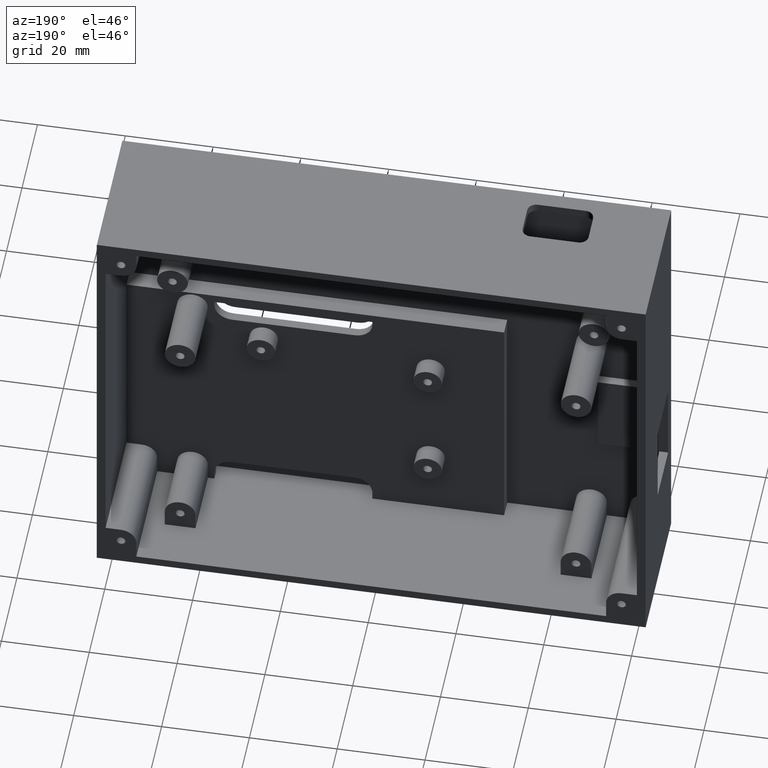
[diagram: clean part render]
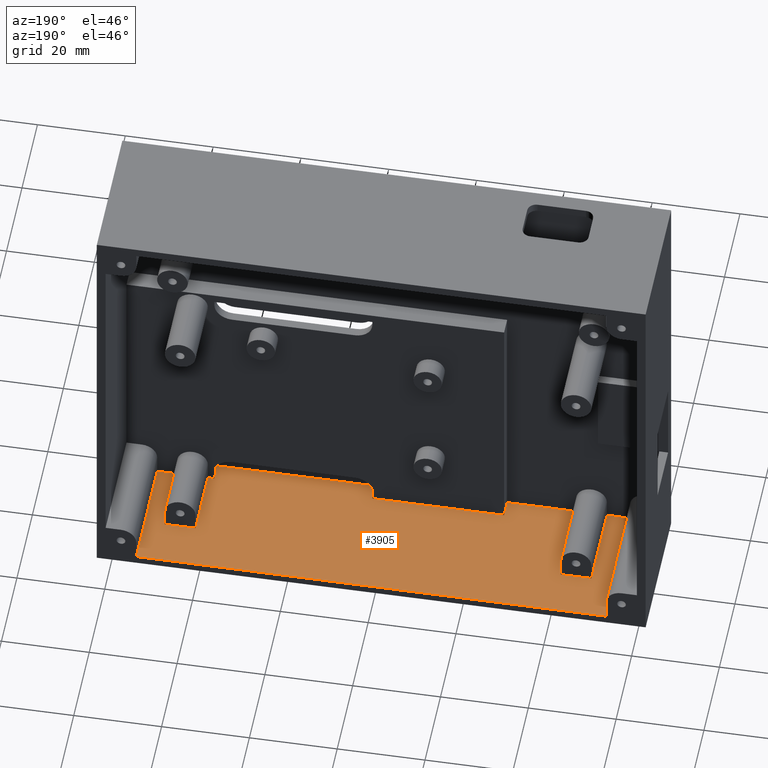
[diagram: same view with one face highlighted and labeled with its STEP entity id]
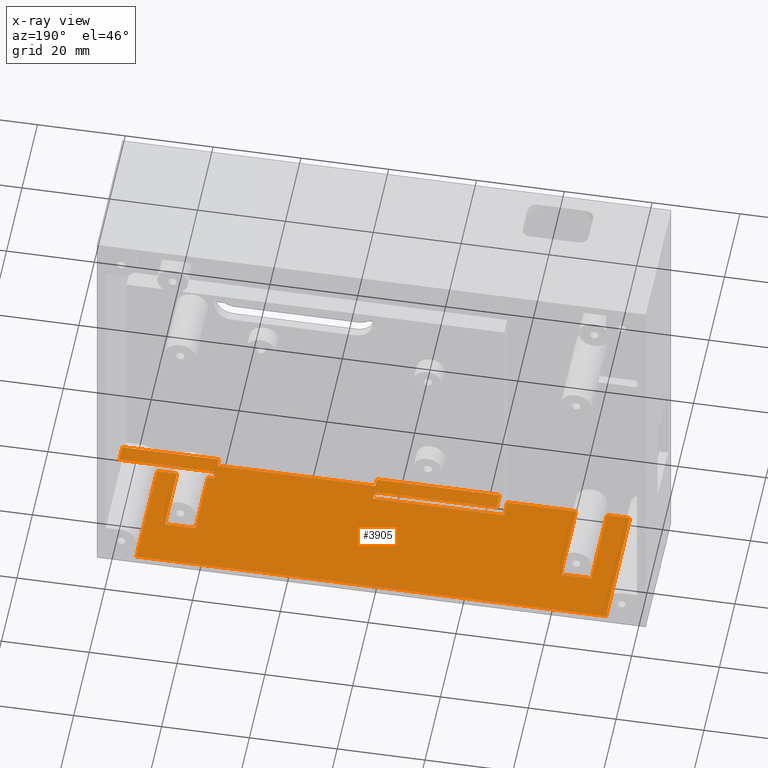
[diagram: x-ray of the same camera — body ghosted, the highlighted face saturated]
A machine part, auxiliary view. The second image highlights one B-rep face of the part: STEP entity #3905.
The next image is the same camera in x-ray: the body ghosted, the highlighted face saturated — about 0% of this face is hidden behind the body in this view.
In plain terms, the highlighted planar face has unit normal (0, 0, -1).
Its self-contained STEP definition (entity closure, byte-faithful):
#29 = VECTOR ( 'NONE', #1264, 1000.000000000000000 ) ;
#44 = ORIENTED_EDGE ( 'NONE', *, *, #835, .T. ) ;
#155 = LINE ( 'NONE', #4435, #3276 ) ;
#159 = CARTESIAN_POINT ( 'NONE',  ( -67.68032640949553500, 22.00000000000000000, -42.25222551928782600 ) ) ;
#165 = PLANE ( 'NONE',  #1858 ) ;
#194 = DIRECTION ( 'NONE',  ( -0.0000000000000000000, -1.000000000000000000, -0.0000000000000000000 ) ) ;
#200 = VERTEX_POINT ( 'NONE', #3764 ) ;
#287 = ORIENTED_EDGE ( 'NONE', *, *, #3106, .T. ) ;
#292 = EDGE_CURVE ( 'NONE', #633, #1547, #3825, .T. ) ;
#298 = VERTEX_POINT ( 'NONE', #1825 ) ;
#304 = ORIENTED_EDGE ( 'NONE', *, *, #1840, .T. ) ;
#352 = ORIENTED_EDGE ( 'NONE', *, *, #2330, .T. ) ;
#377 = DIRECTION ( 'NONE',  ( -1.000000000000000000, -0.0000000000000000000, -0.0000000000000000000 ) ) ;
#481 = VECTOR ( 'NONE', #377, 1000.000000000000000 ) ;
#486 = LINE ( 'NONE', #4099, #3293 ) ;
#487 = CARTESIAN_POINT ( 'NONE',  ( 34.02967359050448700, 6.000000000000000000, -42.25222551928782600 ) ) ;
#503 = ORIENTED_EDGE ( 'NONE', *, *, #3562, .T. ) ;
#510 = EDGE_CURVE ( 'NONE', #1196, #2266, #1148, .T. ) ;
#513 = VECTOR ( 'NONE', #1716, 1000.000000000000000 ) ;
#529 = DIRECTION ( 'NONE',  ( -1.000000000000000000, -0.0000000000000000000, -0.0000000000000000000 ) ) ;
#536 = CARTESIAN_POINT ( 'NONE',  ( -42.97032640949553400, 4.000000000000000000, -42.25222551928782600 ) ) ;
#560 = CARTESIAN_POINT ( 'NONE',  ( -72.97032640949552700, 33.00000000000000000, -42.25222551928782600 ) ) ;
#569 = CARTESIAN_POINT ( 'NONE',  ( 43.02967359050447300, 4.000000000000000000, -42.25222551928782600 ) ) ;
#570 = CARTESIAN_POINT ( 'NONE',  ( 21.02967359050446900, 0.0000000000000000000, -42.25222551928782600 ) ) ;
#581 = CARTESIAN_POINT ( 'NONE',  ( -14.97032640949552700, 2.000000000000000000, -42.25222551928782600 ) ) ;
#589 = EDGE_CURVE ( 'NONE', #4100, #3060, #2281, .T. ) ;
#608 = VECTOR ( 'NONE', #2617, 1000.000000000000000 ) ;
#617 = EDGE_CURVE ( 'NONE', #1860, #3164, #875, .T. ) ;
#633 = VERTEX_POINT ( 'NONE', #560 ) ;
#648 = VERTEX_POINT ( 'NONE', #2255 ) ;
#662 = DIRECTION ( 'NONE',  ( 0.0000000000000000000, 1.000000000000000000, 0.0000000000000000000 ) ) ;
#671 = CARTESIAN_POINT ( 'NONE',  ( -42.97032640949553400, 0.0000000000000000000, -42.25222551928782600 ) ) ;
#700 = DIRECTION ( 'NONE',  ( 1.000000000000000000, 0.0000000000000000000, 0.0000000000000000000 ) ) ;
#701 = VECTOR ( 'NONE', #2405, 1000.000000000000000 ) ;
#715 = EDGE_CURVE ( 'NONE', #1860, #2837, #2716, .T. ) ;
#719 = DIRECTION ( 'NONE',  ( 0.0000000000000000000, -1.000000000000000000, 0.0000000000000000000 ) ) ;
#731 = ORIENTED_EDGE ( 'NONE', *, *, #4073, .T. ) ;
#823 = CARTESIAN_POINT ( 'NONE',  ( -79.97032640949552700, 193.7046981267193600, -42.25222551928782600 ) ) ;
#835 = EDGE_CURVE ( 'NONE', #2403, #298, #4089, .T. ) ;
#841 = EDGE_CURVE ( 'NONE', #3807, #4049, #3084, .T. ) ;
#843 = ORIENTED_EDGE ( 'NONE', *, *, #3315, .F. ) ;
#844 = VECTOR ( 'NONE', #4191, 1000.000000000000000 ) ;
#853 = EDGE_CURVE ( 'NONE', #2837, #2754, #2054, .T. ) ;
#864 = VECTOR ( 'NONE', #1893, 1000.000000000000000 ) ;
#873 = DIRECTION ( 'NONE',  ( 1.000000000000000000, -0.0000000000000000000, 0.0000000000000000000 ) ) ;
#875 = LINE ( 'NONE', #2967, #1369 ) ;
#926 = CARTESIAN_POINT ( 'NONE',  ( -67.68032640949553500, 22.00000000000000000, -42.25222551928782600 ) ) ;
#938 = CARTESIAN_POINT ( 'NONE',  ( 41.02967359050448000, 4.000000000000000000, -42.25222551928782600 ) ) ;
#943 = CARTESIAN_POINT ( 'NONE',  ( 22.48967359050448800, 5.999999999971805700, -42.25222551928782600 ) ) ;
#962 = VECTOR ( 'NONE', #194, 1000.000000000000000 ) ;
#1067 = ORIENTED_EDGE ( 'NONE', *, *, #617, .T. ) ;
#1100 = LINE ( 'NONE', #2014, #1855 ) ;
#1148 = LINE ( 'NONE', #2524, #1428 ) ;
#1154 = ORIENTED_EDGE ( 'NONE', *, *, #1554, .F. ) ;
#1163 = DIRECTION ( 'NONE',  ( 1.000000000000000000, 0.0000000000000000000, 0.0000000000000000000 ) ) ;
#1196 = VERTEX_POINT ( 'NONE', #536 ) ;
#1206 = LINE ( 'NONE', #1947, #3871 ) ;
#1208 = VECTOR ( 'NONE', #2038, 1000.000000000000000 ) ;
#1221 = EDGE_CURVE ( 'NONE', #1247, #1294, #1206, .T. ) ;
#1245 = VECTOR ( 'NONE', #3987, 1000.000000000000000 ) ;
#1247 = VERTEX_POINT ( 'NONE', #569 ) ;
#1263 = LINE ( 'NONE', #2388, #1312 ) ;
#1264 = DIRECTION ( 'NONE',  ( 0.0000000000000000000, -1.000000000000000000, 0.0000000000000000000 ) ) ;
#1286 = ORIENTED_EDGE ( 'NONE', *, *, #1636, .T. ) ;
#1293 = LINE ( 'NONE', #2704, #513 ) ;
#1294 = VERTEX_POINT ( 'NONE', #2273 ) ;
#1312 = VECTOR ( 'NONE', #700, 1000.000000000000000 ) ;
#1354 = LINE ( 'NONE', #2605, #2435 ) ;
#1369 = VECTOR ( 'NONE', #4348, 1000.000000000000000 ) ;
#1421 = CARTESIAN_POINT ( 'NONE',  ( 34.02967359050448700, 33.00000000000000000, -42.25222551928782600 ) ) ;
#1428 = VECTOR ( 'NONE', #2876, 1000.000000000000000 ) ;
#1439 = ORIENTED_EDGE ( 'NONE', *, *, #841, .T. ) ;
#1505 = VERTEX_POINT ( 'NONE', #3936 ) ;
#1539 = LINE ( 'NONE', #938, #608 ) ;
#1547 = VERTEX_POINT ( 'NONE', #2950 ) ;
#1550 = EDGE_CURVE ( 'NONE', #3463, #4036, #3233, .T. ) ;
#1554 = EDGE_CURVE ( 'NONE', #633, #2250, #1354, .T. ) ;
#1587 = VECTOR ( 'NONE', #719, 1000.000000000000000 ) ;
#1627 = VECTOR ( 'NONE', #662, 1000.000000000000000 ) ;
#1636 = EDGE_CURVE ( 'NONE', #4269, #3011, #2243, .T. ) ;
#1637 = DIRECTION ( 'NONE',  ( 0.0000000000000000000, -1.000000000000000000, 0.0000000000000000000 ) ) ;
#1658 = ORIENTED_EDGE ( 'NONE', *, *, #715, .F. ) ;
#1663 = DIRECTION ( 'NONE',  ( 0.0000000000000000000, 1.000000000000000000, 0.0000000000000000000 ) ) ;
#1668 = VERTEX_POINT ( 'NONE', #943 ) ;
#1711 = DIRECTION ( 'NONE',  ( -1.000000000000000000, 0.0000000000000000000, 0.0000000000000000000 ) ) ;
#1716 = DIRECTION ( 'NONE',  ( 1.000000000000000000, 0.0000000000000000000, 0.0000000000000000000 ) ) ;
#1747 = CARTESIAN_POINT ( 'NONE',  ( 21.02967359050446900, 4.000000000000000000, -42.25222551928782600 ) ) ;
#1765 = LINE ( 'NONE', #1796, #844 ) ;
#1768 = EDGE_CURVE ( 'NONE', #2266, #200, #1293, .T. ) ;
#1786 = CARTESIAN_POINT ( 'NONE',  ( -72.97032640949552700, 33.00000000000000000, -42.25222551928782600 ) ) ;
#1788 = VECTOR ( 'NONE', #3581, 1000.000000000000000 ) ;
#1796 = CARTESIAN_POINT ( 'NONE',  ( 21.02967359050446900, 6.000000000000000000, -42.25222551928782600 ) ) ;
#1825 = CARTESIAN_POINT ( 'NONE',  ( -44.97032640949553400, 6.000000000000000000, -42.25222551928782600 ) ) ;
#1831 = CARTESIAN_POINT ( 'NONE',  ( 29.48967359050449500, 22.00000000000000000, -42.25222551928782600 ) ) ;
#1840 = EDGE_CURVE ( 'NONE', #1668, #2754, #2368, .T. ) ;
#1855 = VECTOR ( 'NONE', #1711, 1000.000000000000000 ) ;
#1858 = AXIS2_PLACEMENT_3D ( 'NONE', #823, #4261, #2576 ) ;
#1860 = VERTEX_POINT ( 'NONE', #3165 ) ;
#1886 = LINE ( 'NONE', #2223, #1788 ) ;
#1888 = VECTOR ( 'NONE', #3091, 1000.000000000000000 ) ;
#1893 = DIRECTION ( 'NONE',  ( 0.0000000000000000000, 1.000000000000000000, 0.0000000000000000000 ) ) ;
#1926 = CARTESIAN_POINT ( 'NONE',  ( -14.97032640949552700, 6.000000000000000000, -42.25222551928782600 ) ) ;
#1947 = CARTESIAN_POINT ( 'NONE',  ( 43.02967359050447300, 0.0000000000000000000, -42.25222551928782600 ) ) ;
#2014 = CARTESIAN_POINT ( 'NONE',  ( -14.97032640949552700, 4.000000000000000000, -42.25222551928782600 ) ) ;
#2038 = DIRECTION ( 'NONE',  ( 0.0000000000000000000, 1.000000000000000000, 0.0000000000000000000 ) ) ;
#2049 = CARTESIAN_POINT ( 'NONE',  ( 21.02967359050446900, 4.000000000000000000, -42.25222551928782600 ) ) ;
#2054 = LINE ( 'NONE', #4149, #481 ) ;
#2060 = ORIENTED_EDGE ( 'NONE', *, *, #2713, .T. ) ;
#2072 = ORIENTED_EDGE ( 'NONE', *, *, #589, .F. ) ;
#2107 = LINE ( 'NONE', #3101, #2590 ) ;
#2223 = CARTESIAN_POINT ( 'NONE',  ( 21.02967359050446900, 2.000000000000000000, -42.25222551928782600 ) ) ;
#2243 = LINE ( 'NONE', #1926, #29 ) ;
#2250 = VERTEX_POINT ( 'NONE', #1421 ) ;
#2255 = CARTESIAN_POINT ( 'NONE',  ( -67.68032640949553500, 2.000000000009549700, -42.25222551928782600 ) ) ;
#2266 = VERTEX_POINT ( 'NONE', #671 ) ;
#2273 = CARTESIAN_POINT ( 'NONE',  ( 43.02967359050447300, 0.0000000000000000000, -42.25222551928782600 ) ) ;
#2281 = LINE ( 'NONE', #926, #3615 ) ;
#2330 = EDGE_CURVE ( 'NONE', #4049, #1668, #1765, .T. ) ;
#2368 = LINE ( 'NONE', #3402, #2580 ) ;
#2388 = CARTESIAN_POINT ( 'NONE',  ( -72.97032640949552700, 2.000000000000000000, -42.25222551928782600 ) ) ;
#2403 = VERTEX_POINT ( 'NONE', #2521 ) ;
#2405 = DIRECTION ( 'NONE',  ( 1.000000000000000000, 0.0000000000000000000, 0.0000000000000000000 ) ) ;
#2419 = CARTESIAN_POINT ( 'NONE',  ( -44.97032640949553400, 2.000000000000000000, -42.25222551928782600 ) ) ;
#2435 = VECTOR ( 'NONE', #873, 1000.000000000000000 ) ;
#2482 = EDGE_CURVE ( 'NONE', #4036, #1294, #4052, .T. ) ;
#2521 = CARTESIAN_POINT ( 'NONE',  ( -44.97032640949553400, 2.000000000000000000, -42.25222551928782600 ) ) ;
#2524 = CARTESIAN_POINT ( 'NONE',  ( -42.97032640949553400, 4.000000000000000000, -42.25222551928782600 ) ) ;
#2576 = DIRECTION ( 'NONE',  ( -1.000000000000000000, 0.0000000000000000000, -0.0000000000000000000 ) ) ;
#2580 = VECTOR ( 'NONE', #3486, 1000.000000000000000 ) ;
#2590 = VECTOR ( 'NONE', #3118, 1000.000000000000000 ) ;
#2605 = CARTESIAN_POINT ( 'NONE',  ( -79.97032640949552700, 33.00000000000000000, -42.25222551928782600 ) ) ;
#2617 = DIRECTION ( 'NONE',  ( -1.000000000000000000, 0.0000000000000000000, 0.0000000000000000000 ) ) ;
#2627 = EDGE_LOOP ( 'NONE', ( #4235, #3828, #287, #3890, #3478, #4129, #3256, #731, #1439, #352, #304, #3159, #1658, #1067, #503, #1154, #3738, #2060, #3038, #2072, #843, #3934, #44, #3533, #1286, #4076 ) ) ;
#2630 = CARTESIAN_POINT ( 'NONE',  ( -60.68032640949550700, 22.00000000000000000, -42.25222551928782600 ) ) ;
#2693 = CARTESIAN_POINT ( 'NONE',  ( 34.02967359050448700, 6.000000000000000000, -42.25222551928782600 ) ) ;
#2698 = CARTESIAN_POINT ( 'NONE',  ( -14.97032640949552700, 6.000000000000000000, -42.25222551928782600 ) ) ;
#2704 = CARTESIAN_POINT ( 'NONE',  ( -79.97032640949552700, -0.0000000000000000000, -42.25222551928782600 ) ) ;
#2713 = EDGE_CURVE ( 'NONE', #1547, #648, #2107, .T. ) ;
#2716 = LINE ( 'NONE', #3063, #1208 ) ;
#2754 = VERTEX_POINT ( 'NONE', #2776 ) ;
#2776 = CARTESIAN_POINT ( 'NONE',  ( 22.48967359050448800, 22.00000000000000000, -42.25222551928782600 ) ) ;
#2837 = VERTEX_POINT ( 'NONE', #1831 ) ;
#2876 = DIRECTION ( 'NONE',  ( 0.0000000000000000000, -1.000000000000000000, 0.0000000000000000000 ) ) ;
#2908 = LINE ( 'NONE', #581, #1245 ) ;
#2950 = CARTESIAN_POINT ( 'NONE',  ( -72.97032640949552700, 2.000000000000000000, -42.25222551928782600 ) ) ;
#2967 = CARTESIAN_POINT ( 'NONE',  ( 21.02967359050446900, 6.000000000000000000, -42.25222551928782600 ) ) ;
#2981 = CARTESIAN_POINT ( 'NONE',  ( -60.68032640949550700, 2.000000000000000000, -42.25222551928782600 ) ) ;
#3011 = VERTEX_POINT ( 'NONE', #3613 ) ;
#3038 = ORIENTED_EDGE ( 'NONE', *, *, #3174, .T. ) ;
#3060 = VERTEX_POINT ( 'NONE', #159 ) ;
#3063 = CARTESIAN_POINT ( 'NONE',  ( 29.48967359050449500, -500000.0000000000600, -42.25222551928782600 ) ) ;
#3084 = LINE ( 'NONE', #2049, #1888 ) ;
#3091 = DIRECTION ( 'NONE',  ( 0.0000000000000000000, 1.000000000000000000, 0.0000000000000000000 ) ) ;
#3092 = VERTEX_POINT ( 'NONE', #2981 ) ;
#3093 = CARTESIAN_POINT ( 'NONE',  ( -44.97032640949553400, 6.000000000000000000, -42.25222551928782600 ) ) ;
#3101 = CARTESIAN_POINT ( 'NONE',  ( -72.97032640949552700, 2.000000000000000000, -42.25222551928782600 ) ) ;
#3106 = EDGE_CURVE ( 'NONE', #200, #1505, #2908, .T. ) ;
#3118 = DIRECTION ( 'NONE',  ( 1.000000000000000000, 0.0000000000000000000, 0.0000000000000000000 ) ) ;
#3153 = CARTESIAN_POINT ( 'NONE',  ( 21.02967359050446900, 2.000000000000000000, -42.25222551928782600 ) ) ;
#3159 = ORIENTED_EDGE ( 'NONE', *, *, #853, .F. ) ;
#3164 = VERTEX_POINT ( 'NONE', #2693 ) ;
#3165 = CARTESIAN_POINT ( 'NONE',  ( 29.48967359050449500, 6.000000000000000000, -42.25222551928782600 ) ) ;
#3174 = EDGE_CURVE ( 'NONE', #648, #3060, #155, .T. ) ;
#3184 = FACE_OUTER_BOUND ( 'NONE', #2627, .T. ) ;
#3213 = VECTOR ( 'NONE', #1163, 1000.000000000000000 ) ;
#3233 = LINE ( 'NONE', #4292, #962 ) ;
#3256 = ORIENTED_EDGE ( 'NONE', *, *, #1221, .F. ) ;
#3276 = VECTOR ( 'NONE', #1663, 1000.000000000000000 ) ;
#3293 = VECTOR ( 'NONE', #3461, 1000.000000000000000 ) ;
#3315 = EDGE_CURVE ( 'NONE', #3092, #4100, #486, .T. ) ;
#3318 = CARTESIAN_POINT ( 'NONE',  ( 21.02967359050446900, 6.000000000000000000, -42.25222551928782600 ) ) ;
#3364 = EDGE_CURVE ( 'NONE', #298, #4269, #3564, .T. ) ;
#3395 = EDGE_CURVE ( 'NONE', #3092, #2403, #1263, .T. ) ;
#3402 = CARTESIAN_POINT ( 'NONE',  ( 22.48967359050448800, -500000.0000000000600, -42.25222551928782600 ) ) ;
#3461 = DIRECTION ( 'NONE',  ( 0.0000000000000000000, 1.000000000000000000, 0.0000000000000000000 ) ) ;
#3463 = VERTEX_POINT ( 'NONE', #3153 ) ;
#3478 = ORIENTED_EDGE ( 'NONE', *, *, #1550, .T. ) ;
#3486 = DIRECTION ( 'NONE',  ( 0.0000000000000000000, 1.000000000000000000, 0.0000000000000000000 ) ) ;
#3493 = CARTESIAN_POINT ( 'NONE',  ( -79.97032640949552700, -0.0000000000000000000, -42.25222551928782600 ) ) ;
#3533 = ORIENTED_EDGE ( 'NONE', *, *, #3364, .T. ) ;
#3562 = EDGE_CURVE ( 'NONE', #3164, #2250, #3701, .T. ) ;
#3564 = LINE ( 'NONE', #3093, #701 ) ;
#3575 = EDGE_CURVE ( 'NONE', #1505, #3463, #1886, .T. ) ;
#3581 = DIRECTION ( 'NONE',  ( 1.000000000000000000, -0.0000000000000000000, -0.0000000000000000000 ) ) ;
#3613 = CARTESIAN_POINT ( 'NONE',  ( -14.97032640949552700, 4.000000000000000000, -42.25222551928782600 ) ) ;
#3615 = VECTOR ( 'NONE', #529, 1000.000000000000000 ) ;
#3701 = LINE ( 'NONE', #487, #864 ) ;
#3738 = ORIENTED_EDGE ( 'NONE', *, *, #292, .T. ) ;
#3764 = CARTESIAN_POINT ( 'NONE',  ( -14.97032640949552700, 0.0000000000000000000, -42.25222551928782600 ) ) ;
#3807 = VERTEX_POINT ( 'NONE', #1747 ) ;
#3825 = LINE ( 'NONE', #1786, #1587 ) ;
#3828 = ORIENTED_EDGE ( 'NONE', *, *, #1768, .T. ) ;
#3871 = VECTOR ( 'NONE', #1637, 1000.000000000000000 ) ;
#3890 = ORIENTED_EDGE ( 'NONE', *, *, #3575, .T. ) ;
#3905 = ADVANCED_FACE ( 'NONE', ( #3184 ), #165, .F. ) ;
#3934 = ORIENTED_EDGE ( 'NONE', *, *, #3395, .T. ) ;
#3936 = CARTESIAN_POINT ( 'NONE',  ( -14.97032640949552700, 2.000000000000000000, -42.25222551928782600 ) ) ;
#3987 = DIRECTION ( 'NONE',  ( -0.0000000000000000000, 1.000000000000000000, -0.0000000000000000000 ) ) ;
#4036 = VERTEX_POINT ( 'NONE', #570 ) ;
#4049 = VERTEX_POINT ( 'NONE', #3318 ) ;
#4052 = LINE ( 'NONE', #3493, #3213 ) ;
#4073 = EDGE_CURVE ( 'NONE', #1247, #3807, #1539, .T. ) ;
#4076 = ORIENTED_EDGE ( 'NONE', *, *, #4221, .T. ) ;
#4089 = LINE ( 'NONE', #2419, #1627 ) ;
#4099 = CARTESIAN_POINT ( 'NONE',  ( -60.68032640949550700, -500000.0000000000600, -42.25222551928782600 ) ) ;
#4100 = VERTEX_POINT ( 'NONE', #2630 ) ;
#4129 = ORIENTED_EDGE ( 'NONE', *, *, #2482, .T. ) ;
#4149 = CARTESIAN_POINT ( 'NONE',  ( 22.48967359050448800, 22.00000000000000000, -42.25222551928782600 ) ) ;
#4191 = DIRECTION ( 'NONE',  ( 1.000000000000000000, 0.0000000000000000000, 0.0000000000000000000 ) ) ;
#4221 = EDGE_CURVE ( 'NONE', #3011, #1196, #1100, .T. ) ;
#4235 = ORIENTED_EDGE ( 'NONE', *, *, #510, .T. ) ;
#4261 = DIRECTION ( 'NONE',  ( 0.0000000000000000000, 0.0000000000000000000, -1.000000000000000000 ) ) ;
#4269 = VERTEX_POINT ( 'NONE', #2698 ) ;
#4292 = CARTESIAN_POINT ( 'NONE',  ( 21.02967359050446900, 0.0000000000000000000, -42.25222551928782600 ) ) ;
#4348 = DIRECTION ( 'NONE',  ( 1.000000000000000000, 0.0000000000000000000, 0.0000000000000000000 ) ) ;
#4435 = CARTESIAN_POINT ( 'NONE',  ( -67.68032640949553500, -500000.0000000000600, -42.25222551928782600 ) ) ;